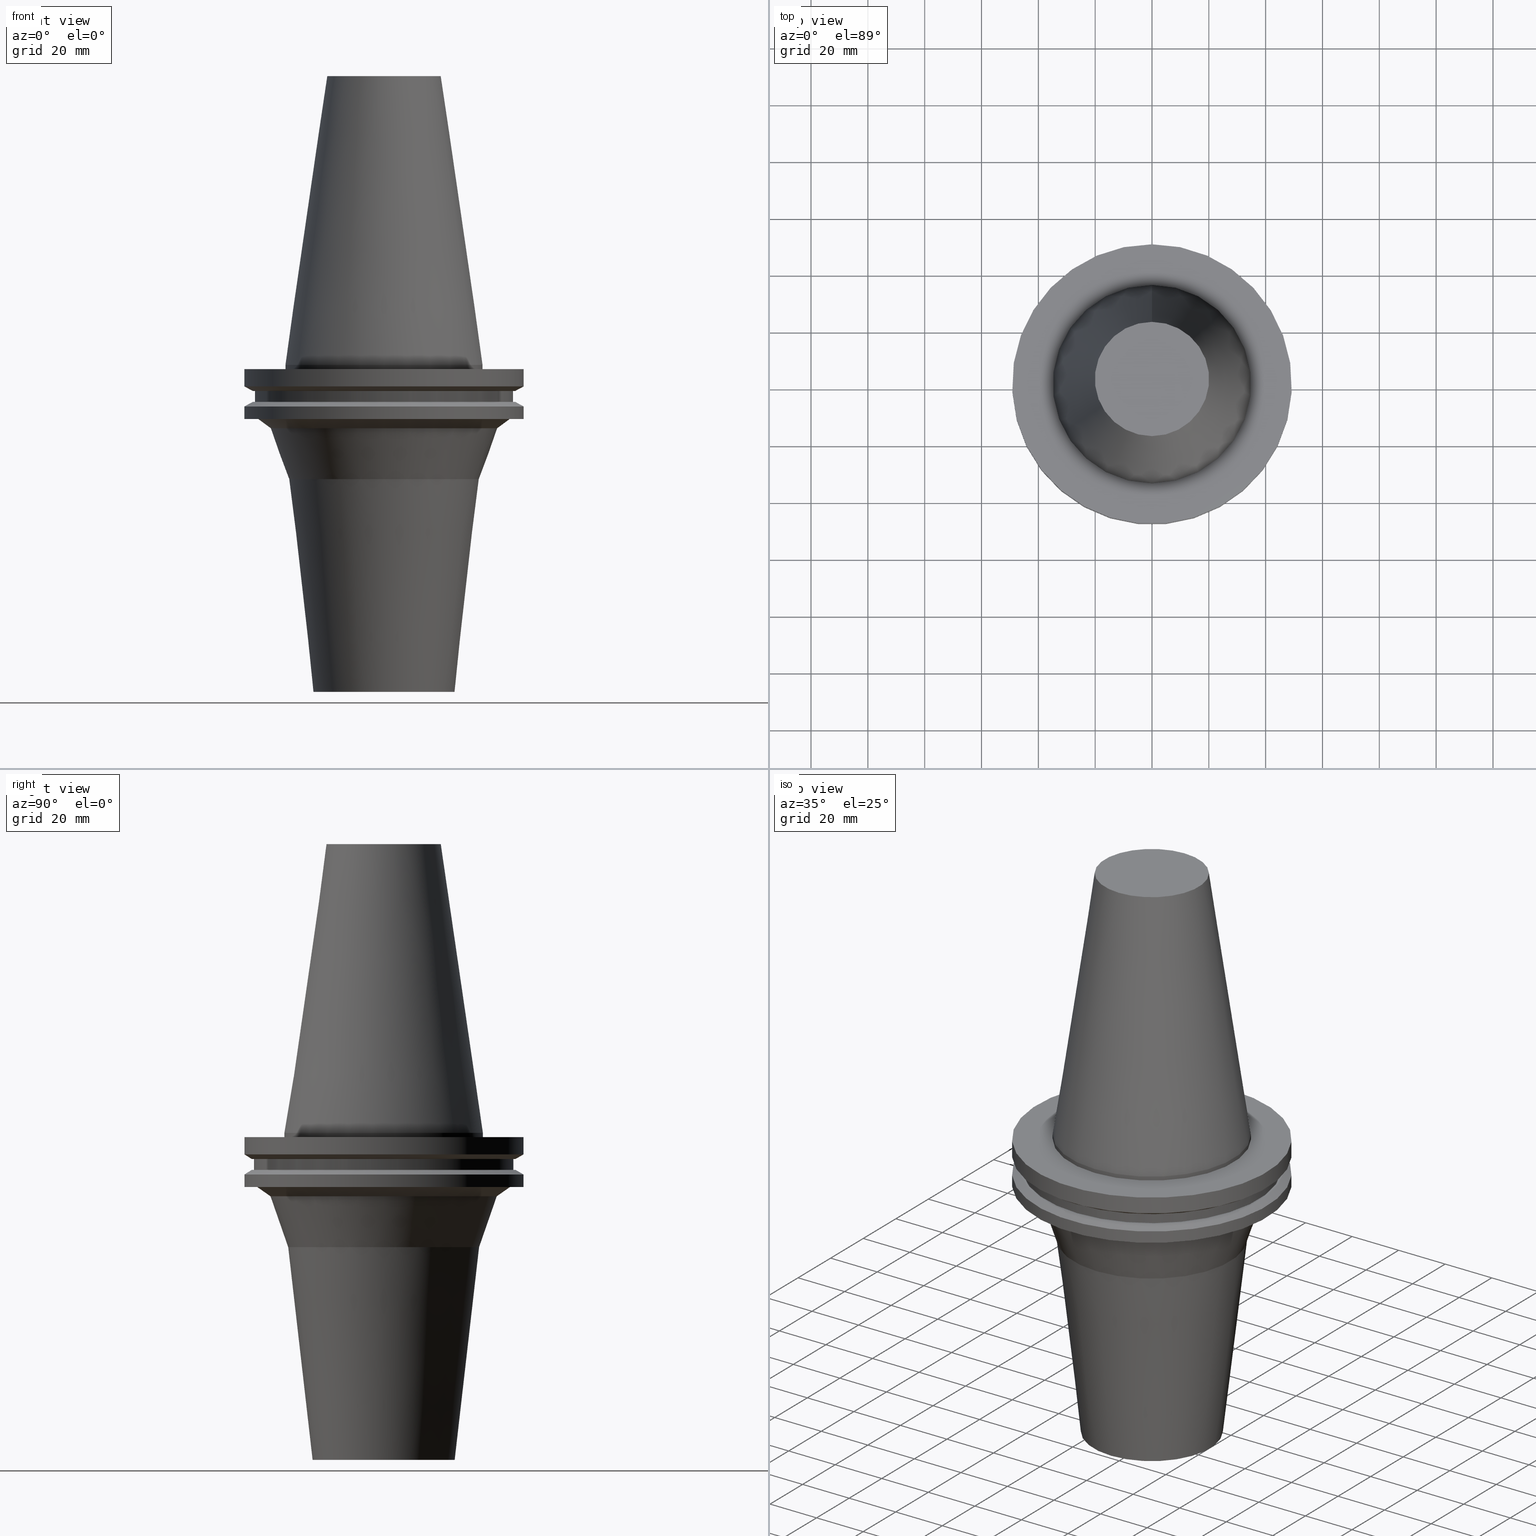
[diagram: canonical four-view strip — front | top / right | iso, engineering-drawing reading convention]
A machine part, canonical four-view strip (front | top / right | iso — engineering-drawing reading convention). The complete STEP part file that produces these views, byte-faithful:
ISO-10303-21;
HEADER;
FILE_DESCRIPTION((''),'1');
FILE_NAME('V:/01_Dxf_Field-HP\X2\FF71FF6FFF8CFF9F5916\X0\2013/BIGKAISER\X2\FF76FF80FF9BFF78FF9E63B28F095206\X0\_BKUS_201803/BCV_Y-S/BCV50Y-S50-4.5.stp','2018-03-13T06:11:05',(''),(''),'Spatial Interop R21 SP3','Kubotek KeyCreator 2011 V10.0.2 (22737)',' ');
FILE_SCHEMA(('automotive_design'));
ENDSEC;
DATA;
#1=MECHANICAL_DESIGN_GEOMETRIC_PRESENTATION_REPRESENTATION(' ',(#10,#11,#12,#13,#14,#15,#16,#17,#18,#19,#20,#21,#22,#23,#24,#25,#26,#27,#28,#29,#30,#31,#32,#33,#34,#35,#36,#37,#38,#39,#40,#41),#6);
#2=PRODUCT_DEFINITION_CONTEXT('',#42,'design');
#3=APPLICATION_PROTOCOL_DEFINITION('INTERNATIONAL STANDARD','automotive_design',1994,#42);
#4=PRODUCT_CATEGORY_RELATIONSHIP('NONE','NONE',#43,#44);
#5=SHAPE_DEFINITION_REPRESENTATION(#45,#46);
#6= (GEOMETRIC_REPRESENTATION_CONTEXT(3)GLOBAL_UNCERTAINTY_ASSIGNED_CONTEXT((#49))GLOBAL_UNIT_ASSIGNED_CONTEXT((#51,#52,#53))REPRESENTATION_CONTEXT('NONE','WORKSPACE'));
#10=STYLED_ITEM('',(#55),#56);
#11=STYLED_ITEM('',(#57,#58),#59);
#12=STYLED_ITEM('',(#60),#61);
#13=STYLED_ITEM('',(#62,#63),#64);
#14=STYLED_ITEM('',(#65),#66);
#15=STYLED_ITEM('',(#67,#68),#69);
#16=STYLED_ITEM('',(#70),#71);
#17=STYLED_ITEM('',(#72),#73);
#18=STYLED_ITEM('',(#74,#75),#76);
#19=STYLED_ITEM('',(#77,#78),#79);
#20=STYLED_ITEM('',(#80),#81);
#21=STYLED_ITEM('',(#82,#83),#84);
#22=STYLED_ITEM('',(#85),#86);
#23=STYLED_ITEM('',(#87),#88);
#24=STYLED_ITEM('',(#89,#90),#91);
#25=STYLED_ITEM('',(#92,#93),#94);
#26=STYLED_ITEM('',(#95),#96);
#27=STYLED_ITEM('',(#97),#98);
#28=STYLED_ITEM('',(#99,#100),#101);
#29=STYLED_ITEM('',(#102,#103),#104);
#30=STYLED_ITEM('',(#105,#106),#107);
#31=STYLED_ITEM('',(#108,#109),#110);
#32=STYLED_ITEM('',(#111),#112);
#33=STYLED_ITEM('',(#113,#114),#115);
#34=STYLED_ITEM('',(#116,#117),#118);
#35=STYLED_ITEM('',(#119,#120),#121);
#36=STYLED_ITEM('',(#122),#123);
#37=STYLED_ITEM('',(#124),#125);
#38=STYLED_ITEM('',(#126),#127);
#39=STYLED_ITEM('',(#128,#129),#130);
#40=STYLED_ITEM('',(#131,#132),#133);
#41=STYLED_ITEM('',(#134),#135);
#42=APPLICATION_CONTEXT(' ');
#43=PRODUCT_CATEGORY('part','NONE');
#44=PRODUCT_RELATED_PRODUCT_CATEGORY('detail',' ',(#136));
#45=PRODUCT_DEFINITION_SHAPE('NONE','NONE',#137);
#46=ADVANCED_BREP_SHAPE_REPRESENTATION('Unnamed[1]',(#84,#138),#6);
#49=UNCERTAINTY_MEASURE_WITH_UNIT(LENGTH_MEASURE(1.0E-006),#51,'','');
#51= (CONVERSION_BASED_UNIT('MILLIMETRE',#141)LENGTH_UNIT()NAMED_UNIT(#144));
#52= (NAMED_UNIT(#146)PLANE_ANGLE_UNIT()SI_UNIT($,.RADIAN.));
#53= (NAMED_UNIT(#146)SOLID_ANGLE_UNIT()SI_UNIT($,.STERADIAN.));
#55=PRESENTATION_STYLE_ASSIGNMENT((#152));
#56=EDGE_CURVE('Unnamed[1]',#153,#153,#154,.T.);
#57=PRESENTATION_STYLE_ASSIGNMENT((#155));
#58=PRESENTATION_STYLE_ASSIGNMENT((#156));
#59=ADVANCED_FACE('Unnamed[1]',(#157,#158),#159,.T.);
#60=PRESENTATION_STYLE_ASSIGNMENT((#160));
#61=EDGE_CURVE('Unnamed[1]',#161,#161,#162,.T.);
#62=PRESENTATION_STYLE_ASSIGNMENT((#163));
#63=PRESENTATION_STYLE_ASSIGNMENT((#164));
#64=ADVANCED_FACE('Unnamed[1]',(#165),#166,.T.);
#65=PRESENTATION_STYLE_ASSIGNMENT((#167));
#66=EDGE_CURVE('Unnamed[1]',#168,#168,#169,.T.);
#67=PRESENTATION_STYLE_ASSIGNMENT((#170));
#68=PRESENTATION_STYLE_ASSIGNMENT((#171));
#69=ADVANCED_FACE('Unnamed[1]',(#172,#173),#174,.T.);
#70=PRESENTATION_STYLE_ASSIGNMENT((#175));
#71=EDGE_CURVE('Unnamed[1]',#176,#176,#177,.T.);
#72=PRESENTATION_STYLE_ASSIGNMENT((#178));
#73=EDGE_CURVE('Unnamed[1]',#179,#179,#180,.T.);
#74=PRESENTATION_STYLE_ASSIGNMENT((#181));
#75=PRESENTATION_STYLE_ASSIGNMENT((#182));
#76=ADVANCED_FACE('Unnamed[1]',(#183,#184),#185,.T.);
#77=PRESENTATION_STYLE_ASSIGNMENT((#186));
#78=PRESENTATION_STYLE_ASSIGNMENT((#187));
#79=ADVANCED_FACE('Unnamed[1]',(#188,#189),#190,.T.);
#80=PRESENTATION_STYLE_ASSIGNMENT((#191));
#81=EDGE_CURVE('Unnamed[1]',#192,#192,#193,.T.);
#82=PRESENTATION_STYLE_ASSIGNMENT((#194));
#83=PRESENTATION_STYLE_ASSIGNMENT((#195));
#84=MANIFOLD_SOLID_BREP('Unnamed[1]',#196);
#85=PRESENTATION_STYLE_ASSIGNMENT((#197));
#86=EDGE_CURVE('Unnamed[1]',#198,#198,#199,.T.);
#87=PRESENTATION_STYLE_ASSIGNMENT((#200));
#88=EDGE_CURVE('Unnamed[1]',#201,#201,#202,.T.);
#89=PRESENTATION_STYLE_ASSIGNMENT((#203));
#90=PRESENTATION_STYLE_ASSIGNMENT((#204));
#91=ADVANCED_FACE('Unnamed[1]',(#205,#206),#207,.T.);
#92=PRESENTATION_STYLE_ASSIGNMENT((#208));
#93=PRESENTATION_STYLE_ASSIGNMENT((#209));
#94=ADVANCED_FACE('Unnamed[1]',(#210,#211),#212,.T.);
#95=PRESENTATION_STYLE_ASSIGNMENT((#213));
#96=EDGE_CURVE('Unnamed[1]',#214,#214,#215,.T.);
#97=PRESENTATION_STYLE_ASSIGNMENT((#216));
#98=EDGE_CURVE('Unnamed[1]',#217,#217,#218,.T.);
#99=PRESENTATION_STYLE_ASSIGNMENT((#219));
#100=PRESENTATION_STYLE_ASSIGNMENT((#220));
#101=ADVANCED_FACE('Unnamed[1]',(#221,#222),#223,.T.);
#102=PRESENTATION_STYLE_ASSIGNMENT((#224));
#103=PRESENTATION_STYLE_ASSIGNMENT((#225));
#104=ADVANCED_FACE('Unnamed[1]',(#226),#227,.T.);
#105=PRESENTATION_STYLE_ASSIGNMENT((#228));
#106=PRESENTATION_STYLE_ASSIGNMENT((#229));
#107=ADVANCED_FACE('Unnamed[1]',(#230,#231),#232,.T.);
#108=PRESENTATION_STYLE_ASSIGNMENT((#233));
#109=PRESENTATION_STYLE_ASSIGNMENT((#234));
#110=ADVANCED_FACE('Unnamed[1]',(#235,#236),#237,.T.);
#111=PRESENTATION_STYLE_ASSIGNMENT((#238));
#112=EDGE_CURVE('Unnamed[1]',#239,#239,#240,.T.);
#113=PRESENTATION_STYLE_ASSIGNMENT((#241));
#114=PRESENTATION_STYLE_ASSIGNMENT((#242));
#115=ADVANCED_FACE('Unnamed[1]',(#243,#244),#245,.T.);
#116=PRESENTATION_STYLE_ASSIGNMENT((#246));
#117=PRESENTATION_STYLE_ASSIGNMENT((#247));
#118=ADVANCED_FACE('Unnamed[1]',(#248,#249),#250,.T.);
#119=PRESENTATION_STYLE_ASSIGNMENT((#251));
#120=PRESENTATION_STYLE_ASSIGNMENT((#252));
#121=ADVANCED_FACE('Unnamed[1]',(#253,#254),#255,.T.);
#122=PRESENTATION_STYLE_ASSIGNMENT((#256));
#123=EDGE_CURVE('Unnamed[1]',#257,#257,#258,.T.);
#124=PRESENTATION_STYLE_ASSIGNMENT((#259));
#125=EDGE_CURVE('Unnamed[1]',#260,#260,#261,.T.);
#126=PRESENTATION_STYLE_ASSIGNMENT((#262));
#127=EDGE_CURVE('Unnamed[1]',#263,#263,#264,.T.);
#128=PRESENTATION_STYLE_ASSIGNMENT((#265));
#129=PRESENTATION_STYLE_ASSIGNMENT((#266));
#130=ADVANCED_FACE('Unnamed[1]',(#267,#268),#269,.T.);
#131=PRESENTATION_STYLE_ASSIGNMENT((#270));
#132=PRESENTATION_STYLE_ASSIGNMENT((#271));
#133=ADVANCED_FACE('Unnamed[1]',(#272,#273),#274,.T.);
#134=PRESENTATION_STYLE_ASSIGNMENT((#275));
#135=EDGE_CURVE('Unnamed[1]',#276,#276,#277,.T.);
#136=PRODUCT('Unnamed[1]','Unnamed[1]','PART-Unnamed[1]-DESC',(#278));
#137=PRODUCT_DEFINITION('NONE','NONE',#279,#2);
#138=AXIS2_PLACEMENT_3D('',#280,#281,#282);
#141=LENGTH_MEASURE_WITH_UNIT(LENGTH_MEASURE(1.0),#283);
#144=DIMENSIONAL_EXPONENTS(1.0,0.0,0.0,0.0,0.0,0.0,0.0);
#146=DIMENSIONAL_EXPONENTS(0.0,0.0,0.0,0.0,0.0,0.0,0.0);
#152=CURVE_STYLE('',#284,POSITIVE_LENGTH_MEASURE(1000.0),#285);
#153=VERTEX_POINT('',#286);
#154=CIRCLE('',#287,34.925);
#155=SURFACE_STYLE_USAGE(.BOTH.,#288);
#156=CURVE_STYLE('',#289,POSITIVE_LENGTH_MEASURE(1000.0),#290);
#157=FACE_BOUND('',#291,.T.);
#158=FACE_BOUND('',#292,.T.);
#159=CYLINDRICAL_SURFACE('',#293,49.2125);
#160=CURVE_STYLE('',#294,POSITIVE_LENGTH_MEASURE(1000.0),#295);
#161=VERTEX_POINT('',#296);
#162=CIRCLE('',#297,46.43053755);
#163=SURFACE_STYLE_USAGE(.BOTH.,#298);
#164=CURVE_STYLE('',#299,POSITIVE_LENGTH_MEASURE(1000.0),#300);
#165=FACE_OUTER_BOUND('',#301,.T.);
#166=PLANE('',#302);
#167=CURVE_STYLE('',#303,POSITIVE_LENGTH_MEASURE(1000.0),#304);
#168=VERTEX_POINT('',#305);
#169=CIRCLE('',#306,49.2125);
#170=SURFACE_STYLE_USAGE(.BOTH.,#307);
#171=CURVE_STYLE('',#308,POSITIVE_LENGTH_MEASURE(1000.0),#309);
#172=FACE_OUTER_BOUND('',#310,.T.);
#173=FACE_BOUND('',#311,.T.);
#174=PLANE('',#312);
#175=CURVE_STYLE('',#313,POSITIVE_LENGTH_MEASURE(1000.0),#314);
#176=VERTEX_POINT('',#315);
#177=CIRCLE('',#316,24.9999999999999);
#178=CURVE_STYLE('',#317,POSITIVE_LENGTH_MEASURE(1000.0),#318);
#179=VERTEX_POINT('',#319);
#180=CIRCLE('',#320,45.645);
#181=SURFACE_STYLE_USAGE(.BOTH.,#321);
#182=CURVE_STYLE('',#322,POSITIVE_LENGTH_MEASURE(1000.0),#323);
#183=FACE_BOUND('',#324,.T.);
#184=FACE_BOUND('',#325,.T.);
#185=CONICAL_SURFACE('',#326,36.6943758811975,0.334560133222812);
#186=SURFACE_STYLE_USAGE(.BOTH.,#327);
#187=CURVE_STYLE('',#328,POSITIVE_LENGTH_MEASURE(1000.0),#329);
#188=FACE_BOUND('',#330,.T.);
#189=FACE_BOUND('',#331,.T.);
#190=CONICAL_SURFACE('',#332,29.2930885876382,0.114170566702656);
#191=CURVE_STYLE('',#333,POSITIVE_LENGTH_MEASURE(1000.0),#334);
#192=VERTEX_POINT('',#335);
#193=CIRCLE('',#336,49.2125);
#194=SURFACE_STYLE_USAGE(.BOTH.,#337);
#195=CURVE_STYLE('',#338,POSITIVE_LENGTH_MEASURE(1000.0),#339);
#196=CLOSED_SHELL('',(#104,#121,#118,#69,#130,#101,#133,#107,#91,#110,#59,#94,#115,#76,#79,#64));
#197=CURVE_STYLE('',#340,POSITIVE_LENGTH_MEASURE(1000.0),#341);
#198=VERTEX_POINT('',#342);
#199=CIRCLE('',#343,44.5010376910484);
#200=CURVE_STYLE('',#344,POSITIVE_LENGTH_MEASURE(1000.0),#345);
#201=VERTEX_POINT('',#346);
#202=CIRCLE('',#347,33.5861771752765);
#203=SURFACE_STYLE_USAGE(.BOTH.,#348);
#204=CURVE_STYLE('',#349,POSITIVE_LENGTH_MEASURE(1000.0),#350);
#205=FACE_OUTER_BOUND('',#351,.T.);
#206=FACE_BOUND('',#352,.T.);
#207=PLANE('',#353);
#208=SURFACE_STYLE_USAGE(.BOTH.,#354);
#209=CURVE_STYLE('',#355,POSITIVE_LENGTH_MEASURE(1000.0),#356);
#210=FACE_BOUND('',#357,.T.);
#211=FACE_OUTER_BOUND('',#358,.T.);
#212=PLANE('',#359);
#213=CURVE_STYLE('',#360,POSITIVE_LENGTH_MEASURE(1000.0),#361);
#214=VERTEX_POINT('',#362);
#215=CIRCLE('',#363,39.8025745871185);
#216=CURVE_STYLE('',#364,POSITIVE_LENGTH_MEASURE(1000.0),#365);
#217=VERTEX_POINT('',#366);
#218=CIRCLE('',#367,45.645);
#219=SURFACE_STYLE_USAGE(.BOTH.,#368);
#220=CURVE_STYLE('',#369,POSITIVE_LENGTH_MEASURE(1000.0),#370);
#221=FACE_BOUND('',#371,.T.);
#222=FACE_BOUND('',#372,.T.);
#223=CONICAL_SURFACE('',#373,47.821518775,1.04719755103024);
#224=SURFACE_STYLE_USAGE(.BOTH.,#374);
#225=CURVE_STYLE('',#375,POSITIVE_LENGTH_MEASURE(1000.0),#376);
#226=FACE_OUTER_BOUND('',#377,.T.);
#227=PLANE('',#378);
#228=SURFACE_STYLE_USAGE(.BOTH.,#379);
#229=CURVE_STYLE('',#380,POSITIVE_LENGTH_MEASURE(1000.0),#381);
#230=FACE_BOUND('',#382,.T.);
#231=FACE_BOUND('',#383,.T.);
#232=CYLINDRICAL_SURFACE('',#384,45.645);
#233=SURFACE_STYLE_USAGE(.BOTH.,#385);
#234=CURVE_STYLE('',#386,POSITIVE_LENGTH_MEASURE(1000.0),#387);
#235=FACE_BOUND('',#388,.T.);
#236=FACE_BOUND('',#389,.T.);
#237=CONICAL_SURFACE('',#390,47.821518775,1.04719755103023);
#238=CURVE_STYLE('',#391,POSITIVE_LENGTH_MEASURE(1000.0),#392);
#239=VERTEX_POINT('',#393);
#240=CIRCLE('',#394,49.2125);
#241=SURFACE_STYLE_USAGE(.BOTH.,#395);
#242=CURVE_STYLE('',#396,POSITIVE_LENGTH_MEASURE(1000.0),#397);
#243=FACE_BOUND('',#398,.T.);
#244=FACE_BOUND('',#399,.T.);
#245=CONICAL_SURFACE('',#400,42.1518061390835,0.959931088596864);
#246=SURFACE_STYLE_USAGE(.BOTH.,#401);
#247=CURVE_STYLE('',#402,POSITIVE_LENGTH_MEASURE(1000.0),#403);
#248=FACE_BOUND('',#404,.T.);
#249=FACE_BOUND('',#405,.T.);
#250=CYLINDRICAL_SURFACE('',#406,34.925);
#251=SURFACE_STYLE_USAGE(.BOTH.,#407);
#252=CURVE_STYLE('',#408,POSITIVE_LENGTH_MEASURE(1000.0),#409);
#253=FACE_BOUND('',#410,.T.);
#254=FACE_BOUND('',#411,.T.);
#255=CONICAL_SURFACE('',#412,27.5166666648608,0.144812498273746);
#256=CURVE_STYLE('',#413,POSITIVE_LENGTH_MEASURE(1000.0),#414);
#257=VERTEX_POINT('',#415);
#258=CIRCLE('',#416,20.1083333297217);
#259=CURVE_STYLE('',#417,POSITIVE_LENGTH_MEASURE(1000.0),#418);
#260=VERTEX_POINT('',#419);
#261=CIRCLE('',#420,49.2125);
#262=CURVE_STYLE('',#421,POSITIVE_LENGTH_MEASURE(1000.0),#422);
#263=VERTEX_POINT('',#423);
#264=CIRCLE('',#424,34.925);
#265=SURFACE_STYLE_USAGE(.BOTH.,#425);
#266=CURVE_STYLE('',#426,POSITIVE_LENGTH_MEASURE(1000.0),#427);
#267=FACE_BOUND('',#428,.T.);
#268=FACE_BOUND('',#429,.T.);
#269=CYLINDRICAL_SURFACE('',#430,49.2125);
#270=SURFACE_STYLE_USAGE(.BOTH.,#431);
#271=CURVE_STYLE('',#432,POSITIVE_LENGTH_MEASURE(1000.0),#433);
#272=FACE_BOUND('',#434,.T.);
#273=FACE_OUTER_BOUND('',#435,.T.);
#274=PLANE('',#436);
#275=CURVE_STYLE('',#437,POSITIVE_LENGTH_MEASURE(1000.0),#438);
#276=VERTEX_POINT('',#439);
#277=CIRCLE('',#440,46.43053755);
#278=PRODUCT_CONTEXT('',#42,'mechanical');
#279=PRODUCT_DEFINITION_FORMATION_WITH_SPECIFIED_SOURCE(' ','NONE',#136,.NOT_KNOWN.);
#280=CARTESIAN_POINT('',(0.0,0.0,0.0));
#281=DIRECTION('',(0.0,0.0,1.0));
#282=DIRECTION('',(1.0,0.0,0.0));
#283= (NAMED_UNIT(#144)LENGTH_UNIT()SI_UNIT(.MILLI.,.METRE.));
#284=DRAUGHTING_PRE_DEFINED_CURVE_FONT('continuous');
#285=COLOUR_RGB('',0.0,1.0,0.0);
#286=CARTESIAN_POINT('',(9.18485099360511E-017,34.925,-1.5));
#287=AXIS2_PLACEMENT_3D('',#442,#443,#444);
#288=SURFACE_SIDE_STYLE('',(#445));
#289=DRAUGHTING_PRE_DEFINED_CURVE_FONT('continuous');
#290=COLOUR_RGB('',0.0,1.0,0.0);
#291=EDGE_LOOP('',(#446));
#292=EDGE_LOOP('',(#447));
#293=AXIS2_PLACEMENT_3D('',#448,#449,#450);
#294=DRAUGHTING_PRE_DEFINED_CURVE_FONT('continuous');
#295=COLOUR_RGB('',0.0,1.0,0.0);
#296=CARTESIAN_POINT('',(5.63337527607782E-016,46.43053755,-9.2));
#297=AXIS2_PLACEMENT_3D('',#451,#452,#453);
#298=SURFACE_SIDE_STYLE('',(#454));
#299=DRAUGHTING_PRE_DEFINED_CURVE_FONT('continuous');
#300=COLOUR_RGB('',0.0,1.0,0.0);
#301=EDGE_LOOP('',(#455));
#302=AXIS2_PLACEMENT_3D('',#456,#457,#458);
#303=DRAUGHTING_PRE_DEFINED_CURVE_FONT('continuous');
#304=COLOUR_RGB('',0.0,1.0,0.0);
#305=CARTESIAN_POINT('',(1.16647607618785E-015,49.2125,-19.05));
#306=AXIS2_PLACEMENT_3D('',#459,#460,#461);
#307=SURFACE_SIDE_STYLE('',(#462));
#308=DRAUGHTING_PRE_DEFINED_CURVE_FONT('continuous');
#309=COLOUR_RGB('',0.0,1.0,0.0);
#310=EDGE_LOOP('',(#463));
#311=EDGE_LOOP('',(#464));
#312=AXIS2_PLACEMENT_3D('',#465,#466,#467);
#313=DRAUGHTING_PRE_DEFINED_CURVE_FONT('continuous');
#314=COLOUR_RGB('',0.0,1.0,0.0);
#315=CARTESIAN_POINT('',(7.04784232909304E-015,24.9999999999999,-115.1));
#316=AXIS2_PLACEMENT_3D('',#468,#469,#470);
#317=DRAUGHTING_PRE_DEFINED_CURVE_FONT('continuous');
#318=COLOUR_RGB('',0.0,1.0,0.0);
#319=CARTESIAN_POINT('',(5.63337527607782E-016,45.645,-9.2));
#320=AXIS2_PLACEMENT_3D('',#471,#472,#473);
#321=SURFACE_SIDE_STYLE('',(#474));
#322=DRAUGHTING_PRE_DEFINED_CURVE_FONT('continuous');
#323=COLOUR_RGB('',0.0,1.0,0.0);
#324=EDGE_LOOP('',(#475));
#325=EDGE_LOOP('',(#476));
#326=AXIS2_PLACEMENT_3D('',#477,#478,#479);
#327=SURFACE_SIDE_STYLE('',(#480));
#328=DRAUGHTING_PRE_DEFINED_CURVE_FONT('continuous');
#329=COLOUR_RGB('',0.0,1.0,0.0);
#330=EDGE_LOOP('',(#481));
#331=EDGE_LOOP('',(#482));
#332=AXIS2_PLACEMENT_3D('',#483,#484,#485);
#333=DRAUGHTING_PRE_DEFINED_CURVE_FONT('continuous');
#334=COLOUR_RGB('',0.0,1.0,0.0);
#335=CARTESIAN_POINT('',(4.64988177918915E-016,49.2125,-7.59383323));
#336=AXIS2_PLACEMENT_3D('',#486,#487,#488);
#337=SURFACE_SIDE_STYLE('',(#489));
#338=DRAUGHTING_PRE_DEFINED_CURVE_FONT('continuous');
#339=COLOUR_RGB('',0.0,1.0,0.0);
#340=DRAUGHTING_PRE_DEFINED_CURVE_FONT('continuous');
#341=COLOUR_RGB('',0.0,1.0,0.0);
#342=CARTESIAN_POINT('',(1.16647607618785E-015,44.5010376910484,-19.05));
#343=AXIS2_PLACEMENT_3D('',#490,#491,#492);
#344=DRAUGHTING_PRE_DEFINED_CURVE_FONT('continuous');
#345=COLOUR_RGB('',0.0,1.0,0.0);
#346=CARTESIAN_POINT('',(2.46290095264445E-015,33.5861771752764,-40.2222249608494));
#347=AXIS2_PLACEMENT_3D('',#493,#494,#495);
#348=SURFACE_SIDE_STYLE('',(#496));
#349=DRAUGHTING_PRE_DEFINED_CURVE_FONT('continuous');
#350=COLOUR_RGB('',0.0,1.0,0.0);
#351=EDGE_LOOP('',(#497));
#352=EDGE_LOOP('',(#498));
#353=AXIS2_PLACEMENT_3D('',#499,#500,#501);
#354=SURFACE_SIDE_STYLE('',(#502));
#355=DRAUGHTING_PRE_DEFINED_CURVE_FONT('continuous');
#356=COLOUR_RGB('',0.0,1.0,0.0);
#357=EDGE_LOOP('',(#503));
#358=EDGE_LOOP('',(#504));
#359=AXIS2_PLACEMENT_3D('',#505,#506,#507);
#360=DRAUGHTING_PRE_DEFINED_CURVE_FONT('continuous');
#361=COLOUR_RGB('',0.0,1.0,0.0);
#362=CARTESIAN_POINT('',(1.36792430753279E-015,39.8025745871185,-22.339899283372));
#363=AXIS2_PLACEMENT_3D('',#508,#509,#510);
#364=DRAUGHTING_PRE_DEFINED_CURVE_FONT('continuous');
#365=COLOUR_RGB('',0.0,1.0,0.0);
#366=CARTESIAN_POINT('',(7.98469713044073E-016,45.645,-13.04));
#367=AXIS2_PLACEMENT_3D('',#511,#512,#513);
#368=SURFACE_SIDE_STYLE('',(#514));
#369=DRAUGHTING_PRE_DEFINED_CURVE_FONT('continuous');
#370=COLOUR_RGB('',0.0,1.0,0.0);
#371=EDGE_LOOP('',(#515));
#372=EDGE_LOOP('',(#516));
#373=AXIS2_PLACEMENT_3D('',#517,#518,#519);
#374=SURFACE_SIDE_STYLE('',(#520));
#375=DRAUGHTING_PRE_DEFINED_CURVE_FONT('continuous');
#376=COLOUR_RGB('',0.0,1.0,0.0);
#377=EDGE_LOOP('',(#521));
#378=AXIS2_PLACEMENT_3D('',#522,#523,#524);
#379=SURFACE_SIDE_STYLE('',(#525));
#380=DRAUGHTING_PRE_DEFINED_CURVE_FONT('continuous');
#381=COLOUR_RGB('',0.0,1.0,0.0);
#382=EDGE_LOOP('',(#526));
#383=EDGE_LOOP('',(#527));
#384=AXIS2_PLACEMENT_3D('',#528,#529,#530);
#385=SURFACE_SIDE_STYLE('',(#531));
#386=DRAUGHTING_PRE_DEFINED_CURVE_FONT('continuous');
#387=COLOUR_RGB('',0.0,1.0,0.0);
#388=EDGE_LOOP('',(#532));
#389=EDGE_LOOP('',(#533));
#390=AXIS2_PLACEMENT_3D('',#534,#535,#536);
#391=DRAUGHTING_PRE_DEFINED_CURVE_FONT('continuous');
#392=COLOUR_RGB('',0.0,1.0,0.0);
#393=CARTESIAN_POINT('',(8.96819062732941E-016,49.2125,-14.64616677));
#394=AXIS2_PLACEMENT_3D('',#537,#538,#539);
#395=SURFACE_SIDE_STYLE('',(#540));
#396=DRAUGHTING_PRE_DEFINED_CURVE_FONT('continuous');
#397=COLOUR_RGB('',0.0,1.0,0.0);
#398=EDGE_LOOP('',(#541));
#399=EDGE_LOOP('',(#542));
#400=AXIS2_PLACEMENT_3D('',#543,#544,#545);
#401=SURFACE_SIDE_STYLE('',(#546));
#402=DRAUGHTING_PRE_DEFINED_CURVE_FONT('continuous');
#403=COLOUR_RGB('',0.0,1.0,0.0);
#404=EDGE_LOOP('',(#547));
#405=EDGE_LOOP('',(#548));
#406=AXIS2_PLACEMENT_3D('',#549,#550,#551);
#407=SURFACE_SIDE_STYLE('',(#552));
#408=DRAUGHTING_PRE_DEFINED_CURVE_FONT('continuous');
#409=COLOUR_RGB('',0.0,1.0,0.0);
#410=EDGE_LOOP('',(#553));
#411=EDGE_LOOP('',(#554));
#412=AXIS2_PLACEMENT_3D('',#555,#556,#557);
#413=DRAUGHTING_PRE_DEFINED_CURVE_FONT('continuous');
#414=COLOUR_RGB('',0.0,1.0,0.0);
#415=CARTESIAN_POINT('',(-6.22120573966855E-015,20.1083333297217,101.6));
#416=AXIS2_PLACEMENT_3D('',#558,#559,#560);
#417=DRAUGHTING_PRE_DEFINED_CURVE_FONT('continuous');
#418=COLOUR_RGB('',0.0,1.0,0.0);
#419=CARTESIAN_POINT('',(9.18485099360509E-017,49.2125,-1.49999999999999));
#420=AXIS2_PLACEMENT_3D('',#561,#562,#563);
#421=DRAUGHTING_PRE_DEFINED_CURVE_FONT('continuous');
#422=COLOUR_RGB('',0.0,1.0,0.0);
#423=CARTESIAN_POINT('',(-4.30483861169435E-031,34.925,4.27707894602213E-015));
#424=AXIS2_PLACEMENT_3D('',#564,#565,#566);
#425=SURFACE_SIDE_STYLE('',(#567));
#426=DRAUGHTING_PRE_DEFINED_CURVE_FONT('continuous');
#427=COLOUR_RGB('',0.0,1.0,0.0);
#428=EDGE_LOOP('',(#568));
#429=EDGE_LOOP('',(#569));
#430=AXIS2_PLACEMENT_3D('',#570,#571,#572);
#431=SURFACE_SIDE_STYLE('',(#573));
#432=DRAUGHTING_PRE_DEFINED_CURVE_FONT('continuous');
#433=COLOUR_RGB('',0.0,1.0,0.0);
#434=EDGE_LOOP('',(#574));
#435=EDGE_LOOP('',(#575));
#436=AXIS2_PLACEMENT_3D('',#576,#577,#578);
#437=DRAUGHTING_PRE_DEFINED_CURVE_FONT('continuous');
#438=COLOUR_RGB('',0.0,1.0,0.0);
#439=CARTESIAN_POINT('',(7.98469713044073E-016,46.43053755,-13.04));
#440=AXIS2_PLACEMENT_3D('',#579,#580,#581);
#442=CARTESIAN_POINT('',(9.18485099360506E-017,-8.42960887861895E-015,-1.49999999999999));
#443=DIRECTION('',(6.12323399573676E-017,-1.22619910848867E-016,-1.0));
#444=DIRECTION('',(2.68115133587094E-033,1.0,-1.22619910848867E-016));
#445=SURFACE_STYLE_FILL_AREA(#582);
#446=ORIENTED_EDGE('',*,*,#66,.F.);
#447=ORIENTED_EDGE('',*,*,#112,.T.);
#448=CARTESIAN_POINT('',(1.0316475694604E-015,-1.03115894949886E-014,-16.848083385));
#449=DIRECTION('',(6.12323399573676E-017,-1.22619910848867E-016,-1.0));
#450=DIRECTION('',(2.68115133587094E-033,1.0,-1.22619910848867E-016));
#451=CARTESIAN_POINT('',(5.63337527607782E-016,-9.37378219215522E-015,-9.19999999999999));
#452=DIRECTION('',(6.12323399573677E-017,-1.22619910848867E-016,-1.0));
#453=DIRECTION('',(2.68115133587094E-033,1.0,-1.22619910848867E-016));
#454=SURFACE_STYLE_FILL_AREA(#583);
#455=ORIENTED_EDGE('',*,*,#71,.T.);
#456=CARTESIAN_POINT('',(7.04784232909303E-015,12.5,-115.1));
#457=DIRECTION('',(6.12323399573677E-017,-2.15127207451759E-015,-1.0));
#458=DIRECTION('',(1.26900270276884E-031,1.0,-2.15127207451759E-015));
#459=CARTESIAN_POINT('',(1.16647607618785E-015,-1.05815883140166E-014,-19.05));
#460=DIRECTION('',(6.12323399573676E-017,-1.22619910848867E-016,-1.0));
#461=DIRECTION('',(2.68115133587094E-033,1.0,-1.22619910848867E-016));
#462=SURFACE_STYLE_FILL_AREA(#584);
#463=ORIENTED_EDGE('',*,*,#125,.F.);
#464=ORIENTED_EDGE('',*,*,#56,.T.);
#465=CARTESIAN_POINT('',(9.1848509936051E-017,42.06875,-1.49999999999999));
#466=DIRECTION('',(-6.12323399573677E-017,-1.22464679914735E-016,1.0));
#467=DIRECTION('',(1.23259516440783E-032,-1.0,-1.22464679914735E-016));
#468=CARTESIAN_POINT('',(7.04784232909304E-015,-2.23592307510503E-014,-115.1));
#469=DIRECTION('',(6.12323399573676E-017,-1.22619910848867E-016,-1.0));
#470=DIRECTION('',(2.68115133587094E-033,1.0,-1.22619910848867E-016));
#471=CARTESIAN_POINT('',(5.63337527607782E-016,-9.37378219215522E-015,-9.19999999999999));
#472=DIRECTION('',(6.12323399573677E-017,-1.22619910848867E-016,-1.0));
#473=DIRECTION('',(2.68115133587095E-033,1.0,-1.22619910848867E-016));
#474=SURFACE_STYLE_FILL_AREA(#585);
#475=ORIENTED_EDGE('',*,*,#88,.F.);
#476=ORIENTED_EDGE('',*,*,#96,.T.);
#477=CARTESIAN_POINT('',(1.91541263008862E-015,-1.20813600610167E-014,-31.2810621221107));
#478=DIRECTION('',(-6.12323399573677E-017,1.22619910848867E-016,1.0));
#479=DIRECTION('',(2.68115133587094E-033,1.0,-1.22619910848867E-016));
#480=SURFACE_STYLE_FILL_AREA(#586);
#481=ORIENTED_EDGE('',*,*,#71,.F.);
#482=ORIENTED_EDGE('',*,*,#88,.T.);
#483=CARTESIAN_POINT('',(4.75537164086874E-015,-1.77684777011192E-014,-77.6611124804248));
#484=DIRECTION('',(-6.12323399573677E-017,1.22619910848868E-016,1.0));
#485=DIRECTION('',(2.68115133587095E-033,1.0,-1.22619910848868E-016));
#486=CARTESIAN_POINT('',(4.64988177918915E-016,-9.17683416600941E-015,-7.59383322999999));
#487=DIRECTION('',(6.12323399573677E-017,-1.22619910848867E-016,-1.0));
#488=DIRECTION('',(2.68115133587094E-033,1.0,-1.22619910848867E-016));
#489=SURFACE_STYLE_FILL_AREA(#587);
#490=CARTESIAN_POINT('',(1.16647607618785E-015,-1.05815883140166E-014,-19.05));
#491=DIRECTION('',(6.12323399573677E-017,-1.22619910848867E-016,-1.0));
#492=DIRECTION('',(2.68115133587094E-033,1.0,-1.22619910848867E-016));
#493=CARTESIAN_POINT('',(2.46290095264445E-015,-1.31777246511881E-014,-40.2222249608494));
#494=DIRECTION('',(6.12323399573677E-017,-1.22619910848867E-016,-1.0));
#495=DIRECTION('',(2.68115133587095E-033,1.0,-1.22619910848867E-016));
#496=SURFACE_STYLE_FILL_AREA(#588);
#497=ORIENTED_EDGE('',*,*,#135,.F.);
#498=ORIENTED_EDGE('',*,*,#98,.T.);
#499=CARTESIAN_POINT('',(7.98469713044073E-016,46.037768775,-13.04));
#500=DIRECTION('',(-6.12323399573677E-017,-1.22464679914735E-016,1.0));
#501=DIRECTION('',(1.23259516440783E-032,-1.0,-1.22464679914735E-016));
#502=SURFACE_STYLE_FILL_AREA(#589);
#503=ORIENTED_EDGE('',*,*,#86,.F.);
#504=ORIENTED_EDGE('',*,*,#66,.T.);
#505=CARTESIAN_POINT('',(1.16647607618785E-015,46.8567688455242,-19.05));
#506=DIRECTION('',(6.12323399573677E-017,1.63057976004623E-015,-1.0));
#507=DIRECTION('',(-1.04671366925523E-031,1.0,1.63057976004623E-015));
#508=CARTESIAN_POINT('',(1.36792430753279E-015,-1.09849954708454E-014,-22.339899283372));
#509=DIRECTION('',(6.12323399573677E-017,-1.22619910848867E-016,-1.0));
#510=DIRECTION('',(2.68115133587095E-033,1.0,-1.22619910848867E-016));
#511=CARTESIAN_POINT('',(7.98469713044073E-016,-9.84464264981487E-015,-13.04));
#512=DIRECTION('',(6.12323399573677E-017,-1.22619910848867E-016,-1.0));
#513=DIRECTION('',(2.68115133587094E-033,1.0,-1.22619910848867E-016));
#514=SURFACE_STYLE_FILL_AREA(#590);
#515=ORIENTED_EDGE('',*,*,#61,.F.);
#516=ORIENTED_EDGE('',*,*,#81,.T.);
#517=CARTESIAN_POINT('',(5.14162852763349E-016,-9.27530817908232E-015,-8.396916615));
#518=DIRECTION('',(-6.12323399573677E-017,1.22619910848867E-016,1.0));
#519=DIRECTION('',(2.68115133587094E-033,1.0,-1.22619910848867E-016));
#520=SURFACE_STYLE_FILL_AREA(#591);
#521=ORIENTED_EDGE('',*,*,#123,.F.);
#522=CARTESIAN_POINT('',(-6.22120573966855E-015,10.0541666648608,101.6));
#523=DIRECTION('',(-6.12323399573677E-017,-1.22464679914735E-016,1.0));
#524=DIRECTION('',(1.23259516440783E-032,-1.0,-1.22464679914735E-016));
#525=SURFACE_STYLE_FILL_AREA(#592);
#526=ORIENTED_EDGE('',*,*,#98,.F.);
#527=ORIENTED_EDGE('',*,*,#73,.T.);
#528=CARTESIAN_POINT('',(6.80903620325928E-016,-9.60921242098505E-015,-11.12));
#529=DIRECTION('',(6.12323399573677E-017,-1.22619910848867E-016,-1.0));
#530=DIRECTION('',(2.68115133587094E-033,1.0,-1.22619910848867E-016));
#531=SURFACE_STYLE_FILL_AREA(#593);
#532=ORIENTED_EDGE('',*,*,#112,.F.);
#533=ORIENTED_EDGE('',*,*,#135,.T.);
#534=CARTESIAN_POINT('',(8.47644387888507E-016,-9.94311666288778E-015,-13.843083385));
#535=DIRECTION('',(6.12323399573677E-017,-1.22619910848867E-016,-1.0));
#536=DIRECTION('',(2.68115133587094E-033,1.0,-1.22619910848867E-016));
#537=CARTESIAN_POINT('',(8.96819062732941E-016,-1.00415906759607E-014,-14.64616677));
#538=DIRECTION('',(6.12323399573676E-017,-1.22619910848867E-016,-1.0));
#539=DIRECTION('',(2.68115133587094E-033,1.0,-1.22619910848867E-016));
#540=SURFACE_STYLE_FILL_AREA(#594);
#541=ORIENTED_EDGE('',*,*,#96,.F.);
#542=ORIENTED_EDGE('',*,*,#86,.T.);
#543=CARTESIAN_POINT('',(1.26720019186032E-015,-1.0783291892431E-014,-20.694949641686));
#544=DIRECTION('',(-6.12323399573677E-017,1.22619910848867E-016,1.0));
#545=DIRECTION('',(2.68115133587095E-033,1.0,-1.22619910848867E-016));
#546=SURFACE_STYLE_FILL_AREA(#595);
#547=ORIENTED_EDGE('',*,*,#56,.F.);
#548=ORIENTED_EDGE('',*,*,#127,.T.);
#549=CARTESIAN_POINT('',(4.59242549680249E-017,-8.3376439454823E-015,-0.749999999999986));
#550=DIRECTION('',(6.12323399573676E-017,-1.22619910848867E-016,-1.0));
#551=DIRECTION('',(2.68115133587094E-033,1.0,-1.22619910848867E-016));
#552=SURFACE_STYLE_FILL_AREA(#596);
#553=ORIENTED_EDGE('',*,*,#127,.F.);
#554=ORIENTED_EDGE('',*,*,#123,.T.);
#555=CARTESIAN_POINT('',(-3.11060286983428E-015,-2.01658754122318E-015,50.8));
#556=DIRECTION('',(6.12323399573677E-017,-1.22619910848867E-016,-1.0));
#557=DIRECTION('',(2.68115133587094E-033,1.0,-1.22619910848867E-016));
#558=CARTESIAN_POINT('',(-6.22120573966855E-015,4.21250392989929E-015,101.6));
#559=DIRECTION('',(6.12323399573677E-017,-1.22619910848867E-016,-1.0));
#560=DIRECTION('',(2.68115133587094E-033,1.0,-1.22619910848867E-016));
#561=CARTESIAN_POINT('',(9.18485099360506E-017,-8.42960887861895E-015,-1.49999999999999));
#562=DIRECTION('',(6.12323399573677E-017,-1.22619910848867E-016,-1.0));
#563=DIRECTION('',(2.68115133587094E-033,1.0,-1.22619910848867E-016));
#564=CARTESIAN_POINT('',(-8.7016388700601E-031,-8.24567901234564E-015,1.4210854715202E-014));
#565=DIRECTION('',(6.12323399573676E-017,-1.22619910848867E-016,-1.0));
#566=DIRECTION('',(2.68115133587094E-033,1.0,-1.22619910848867E-016));
#567=SURFACE_STYLE_FILL_AREA(#597);
#568=ORIENTED_EDGE('',*,*,#81,.F.);
#569=ORIENTED_EDGE('',*,*,#125,.T.);
#570=CARTESIAN_POINT('',(2.78418343927483E-016,-8.80322152231418E-015,-4.54691661499999));
#571=DIRECTION('',(6.12323399573677E-017,-1.22619910848867E-016,-1.0));
#572=DIRECTION('',(2.68115133587094E-033,1.0,-1.22619910848867E-016));
#573=SURFACE_STYLE_FILL_AREA(#598);
#574=ORIENTED_EDGE('',*,*,#73,.F.);
#575=ORIENTED_EDGE('',*,*,#61,.T.);
#576=CARTESIAN_POINT('',(5.63337527607782E-016,46.037768775,-9.2));
#577=DIRECTION('',(6.12323399573677E-017,1.22464679914735E-016,-1.0));
#578=DIRECTION('',(-1.23259516440783E-032,1.0,1.22464679914735E-016));
#579=CARTESIAN_POINT('',(7.98469713044073E-016,-9.84464264981487E-015,-13.04));
#580=DIRECTION('',(6.12323399573677E-017,-1.22619910848867E-016,-1.0));
#581=DIRECTION('',(2.68115133587094E-033,1.0,-1.22619910848867E-016));
#582=FILL_AREA_STYLE('',(#599));
#583=FILL_AREA_STYLE('',(#600));
#584=FILL_AREA_STYLE('',(#601));
#585=FILL_AREA_STYLE('',(#602));
#586=FILL_AREA_STYLE('',(#603));
#587=FILL_AREA_STYLE('',(#604));
#588=FILL_AREA_STYLE('',(#605));
#589=FILL_AREA_STYLE('',(#606));
#590=FILL_AREA_STYLE('',(#607));
#591=FILL_AREA_STYLE('',(#608));
#592=FILL_AREA_STYLE('',(#609));
#593=FILL_AREA_STYLE('',(#610));
#594=FILL_AREA_STYLE('',(#611));
#595=FILL_AREA_STYLE('',(#612));
#596=FILL_AREA_STYLE('',(#613));
#597=FILL_AREA_STYLE('',(#614));
#598=FILL_AREA_STYLE('',(#615));
#599=FILL_AREA_STYLE_COLOUR('',#616);
#600=FILL_AREA_STYLE_COLOUR('',#617);
#601=FILL_AREA_STYLE_COLOUR('',#618);
#602=FILL_AREA_STYLE_COLOUR('',#619);
#603=FILL_AREA_STYLE_COLOUR('',#620);
#604=FILL_AREA_STYLE_COLOUR('',#621);
#605=FILL_AREA_STYLE_COLOUR('',#622);
#606=FILL_AREA_STYLE_COLOUR('',#623);
#607=FILL_AREA_STYLE_COLOUR('',#624);
#608=FILL_AREA_STYLE_COLOUR('',#625);
#609=FILL_AREA_STYLE_COLOUR('',#626);
#610=FILL_AREA_STYLE_COLOUR('',#627);
#611=FILL_AREA_STYLE_COLOUR('',#628);
#612=FILL_AREA_STYLE_COLOUR('',#629);
#613=FILL_AREA_STYLE_COLOUR('',#630);
#614=FILL_AREA_STYLE_COLOUR('',#631);
#615=FILL_AREA_STYLE_COLOUR('',#632);
#616=COLOUR_RGB('',0.0,1.0,0.0);
#617=COLOUR_RGB('',0.0,1.0,0.0);
#618=COLOUR_RGB('',0.0,1.0,0.0);
#619=COLOUR_RGB('',0.0,1.0,0.0);
#620=COLOUR_RGB('',0.0,1.0,0.0);
#621=COLOUR_RGB('',0.0,1.0,0.0);
#622=COLOUR_RGB('',0.0,1.0,0.0);
#623=COLOUR_RGB('',0.0,1.0,0.0);
#624=COLOUR_RGB('',0.0,1.0,0.0);
#625=COLOUR_RGB('',0.0,1.0,0.0);
#626=COLOUR_RGB('',0.0,1.0,0.0);
#627=COLOUR_RGB('',0.0,1.0,0.0);
#628=COLOUR_RGB('',0.0,1.0,0.0);
#629=COLOUR_RGB('',0.0,1.0,0.0);
#630=COLOUR_RGB('',0.0,1.0,0.0);
#631=COLOUR_RGB('',0.0,1.0,0.0);
#632=COLOUR_RGB('',0.0,1.0,0.0);
ENDSEC;
END-ISO-10303-21;
